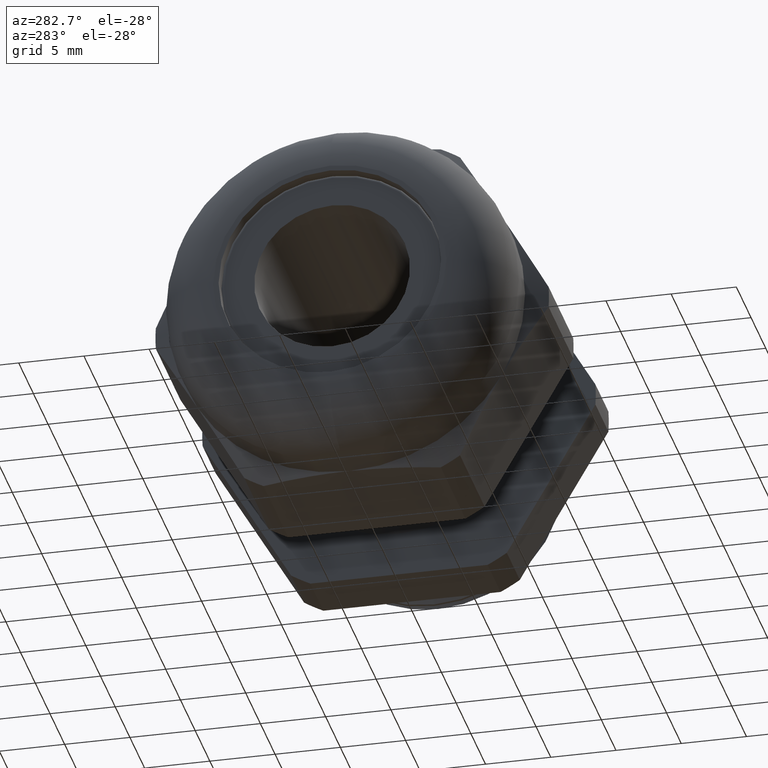
[diagram: clean part render]
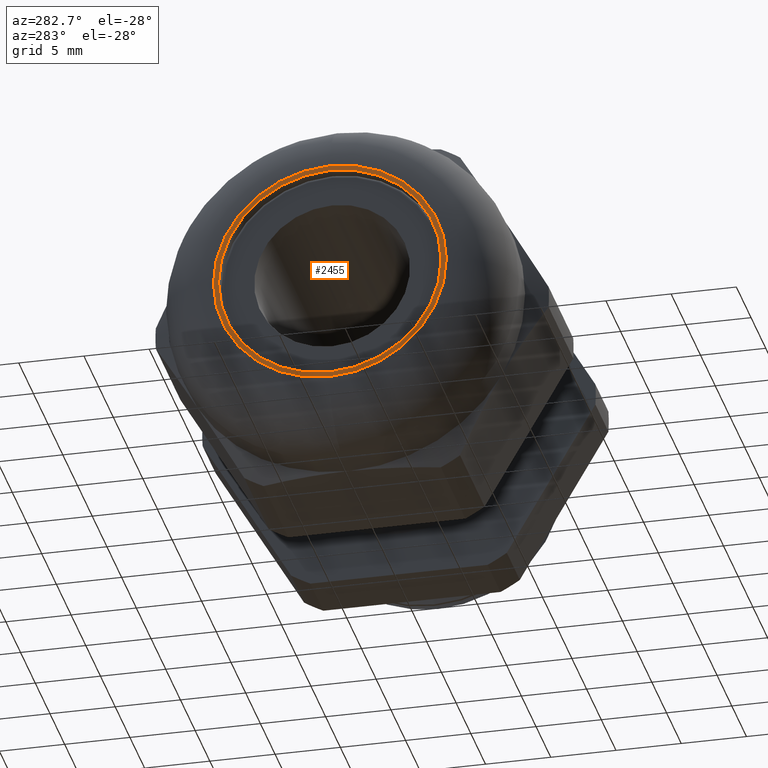
[diagram: same view with one face highlighted and labeled with its STEP entity id]
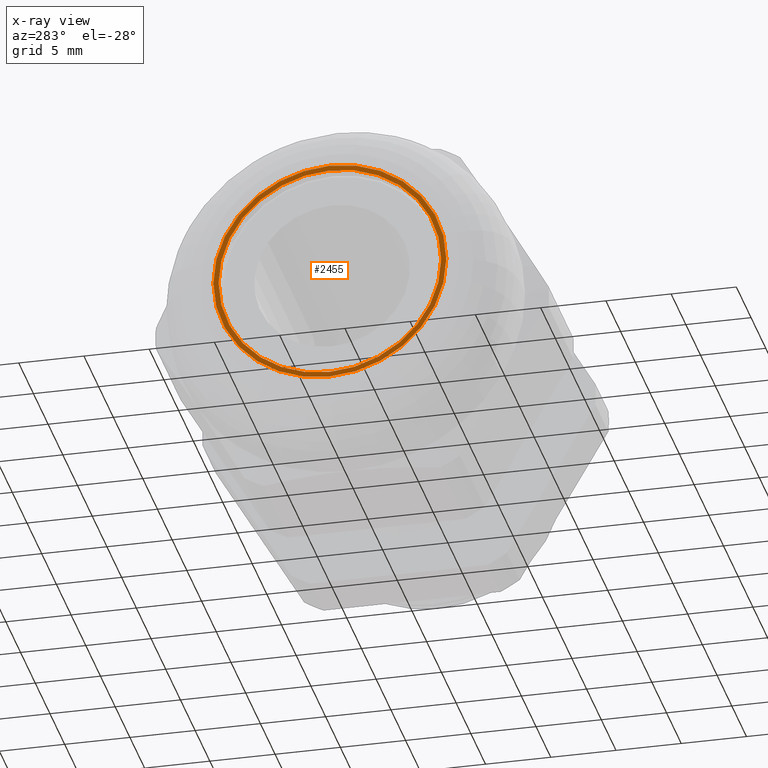
[diagram: x-ray of the same camera — body ghosted, the highlighted face saturated]
A machine part, auxiliary view. The second image highlights one B-rep face of the part: STEP entity #2455.
The next image is the same camera in x-ray: the body ghosted, the highlighted face saturated — about 0% of this face is hidden behind the body in this view.
In plain terms, the highlighted planar face has unit normal (1, 0, 0).
Its self-contained STEP definition (entity closure, byte-faithful):
#707 = CIRCLE ( 'NONE', #765, 0.3513999999999995500 ) ;
#716 = DIRECTION ( 'NONE',  ( 0.0000000000000000000, 0.0000000000000000000, 1.000000000000000000 ) ) ;
#717 = DIRECTION ( 'NONE',  ( -1.000000000000000000, 0.0000000000000000000, 0.0000000000000000000 ) ) ;
#718 = CARTESIAN_POINT ( 'NONE',  ( -1.100000000000000100, 0.0000000000000000000, 0.0000000000000000000 ) ) ;
#719 = AXIS2_PLACEMENT_3D ( 'NONE', #718, #717, #716 ) ;
#720 = CIRCLE ( 'NONE', #719, 0.3357499999999999400 ) ;
#762 = DIRECTION ( 'NONE',  ( 0.0000000000000000000, 0.0000000000000000000, -1.000000000000000000 ) ) ;
#763 = DIRECTION ( 'NONE',  ( -1.000000000000000000, 0.0000000000000000000, 0.0000000000000000000 ) ) ;
#764 = CARTESIAN_POINT ( 'NONE',  ( -1.100000000000000100, 0.0000000000000000000, 0.0000000000000000000 ) ) ;
#765 = AXIS2_PLACEMENT_3D ( 'NONE', #764, #763, #762 ) ;
#806 = FACE_BOUND ( 'NONE', #2412, .T. ) ;
#807 = FACE_OUTER_BOUND ( 'NONE', #2403, .T. ) ;
#838 = CARTESIAN_POINT ( 'NONE',  ( -1.100000000000000100, 0.0000000000000000000, 0.0000000000000000000 ) ) ;
#839 = CARTESIAN_POINT ( 'NONE',  ( -1.100000000000000100, 5.397018443842380300E-017, 0.3513999999999995500 ) ) ;
#859 = CARTESIAN_POINT ( 'NONE',  ( -1.100000000000000100, 0.0000000000000000000, -0.3513999999999995500 ) ) ;
#861 = DIRECTION ( 'NONE',  ( 0.0000000000000000000, 0.0000000000000000000, -1.000000000000000000 ) ) ;
#862 = DIRECTION ( 'NONE',  ( 1.000000000000000000, 0.0000000000000000000, 0.0000000000000000000 ) ) ;
#863 = CARTESIAN_POINT ( 'NONE',  ( -1.100000000000000100, 0.3949999999999999600, 0.0000000000000000000 ) ) ;
#864 = AXIS2_PLACEMENT_3D ( 'NONE', #863, #862, #861 ) ;
#865 = PLANE ( 'NONE',  #864 ) ;
#871 = CARTESIAN_POINT ( 'NONE',  ( -1.100000000000000100, 0.0000000000000000000, 0.3357499999999999400 ) ) ;
#872 = DIRECTION ( 'NONE',  ( 0.0000000000000000000, 0.0000000000000000000, 1.000000000000000000 ) ) ;
#873 = DIRECTION ( 'NONE',  ( -1.000000000000000000, 0.0000000000000000000, 0.0000000000000000000 ) ) ;
#874 = AXIS2_PLACEMENT_3D ( 'NONE', #880, #873, #872 ) ;
#875 = CIRCLE ( 'NONE', #874, 0.3357499999999999400 ) ;
#880 = CARTESIAN_POINT ( 'NONE',  ( -1.100000000000000100, 0.0000000000000000000, 0.0000000000000000000 ) ) ;
#895 = DIRECTION ( 'NONE',  ( 0.0000000000000000000, 0.0000000000000000000, -1.000000000000000000 ) ) ;
#896 = DIRECTION ( 'NONE',  ( -1.000000000000000000, 0.0000000000000000000, 0.0000000000000000000 ) ) ;
#897 = AXIS2_PLACEMENT_3D ( 'NONE', #838, #896, #895 ) ;
#898 = CIRCLE ( 'NONE', #897, 0.3513999999999995500 ) ;
#900 = CARTESIAN_POINT ( 'NONE',  ( -1.100000000000000100, 4.111751628137237600E-017, -0.3357499999999999400 ) ) ;
#2388 = ORIENTED_EDGE ( 'NONE', *, *, #2488, .F. ) ;
#2389 = EDGE_CURVE ( 'NONE', #2489, #2509, #720, .T. ) ;
#2403 = EDGE_LOOP ( 'NONE', ( #2407, #2410 ) ) ;
#2406 = EDGE_CURVE ( 'NONE', #2459, #2473, #707, .T. ) ;
#2407 = ORIENTED_EDGE ( 'NONE', *, *, #2406, .T. ) ;
#2410 = ORIENTED_EDGE ( 'NONE', *, *, #2480, .T. ) ;
#2411 = ORIENTED_EDGE ( 'NONE', *, *, #2389, .F. ) ;
#2412 = EDGE_LOOP ( 'NONE', ( #2411, #2388 ) ) ;
#2455 = ADVANCED_FACE ( 'NONE', ( #807, #806 ), #865, .F. ) ;
#2459 = VERTEX_POINT ( 'NONE', #859 ) ;
#2473 = VERTEX_POINT ( 'NONE', #839 ) ;
#2480 = EDGE_CURVE ( 'NONE', #2473, #2459, #898, .T. ) ;
#2488 = EDGE_CURVE ( 'NONE', #2509, #2489, #875, .T. ) ;
#2489 = VERTEX_POINT ( 'NONE', #871 ) ;
#2509 = VERTEX_POINT ( 'NONE', #900 ) ;